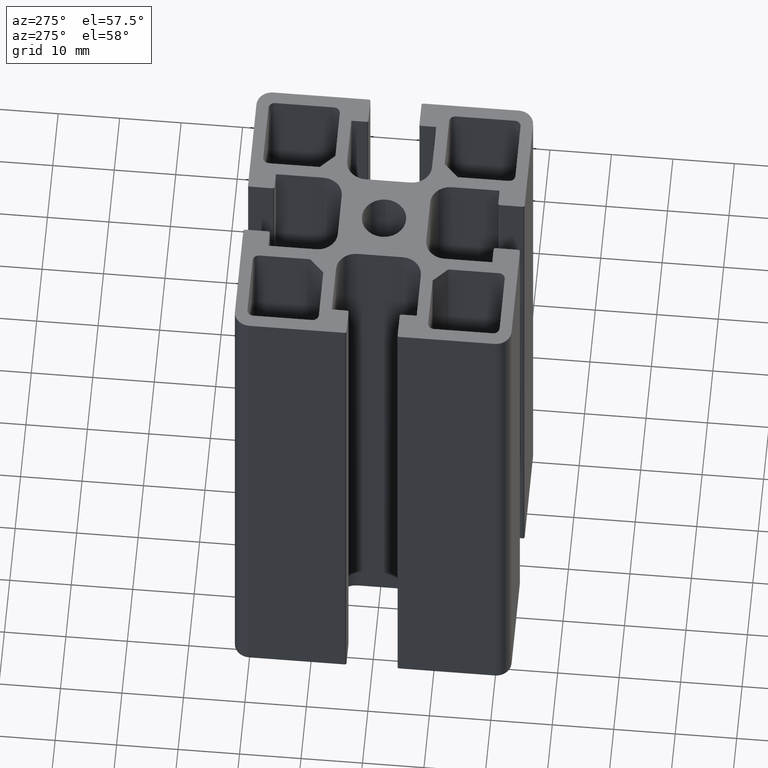
[diagram: clean part render]
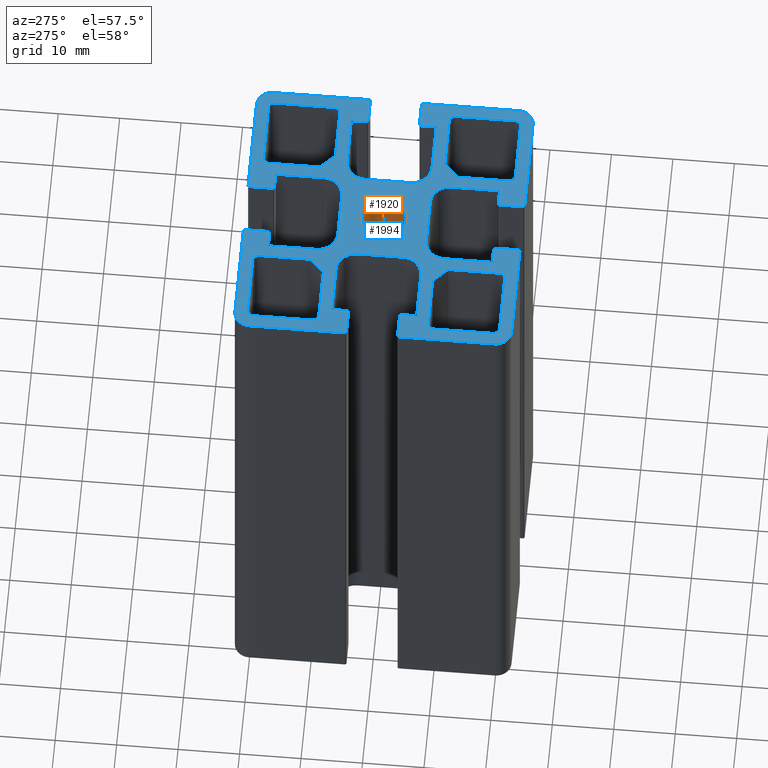
[diagram: same view with the hole feature highlighted: cylindrical wall and planar end face, labeled with their STEP entity ids]
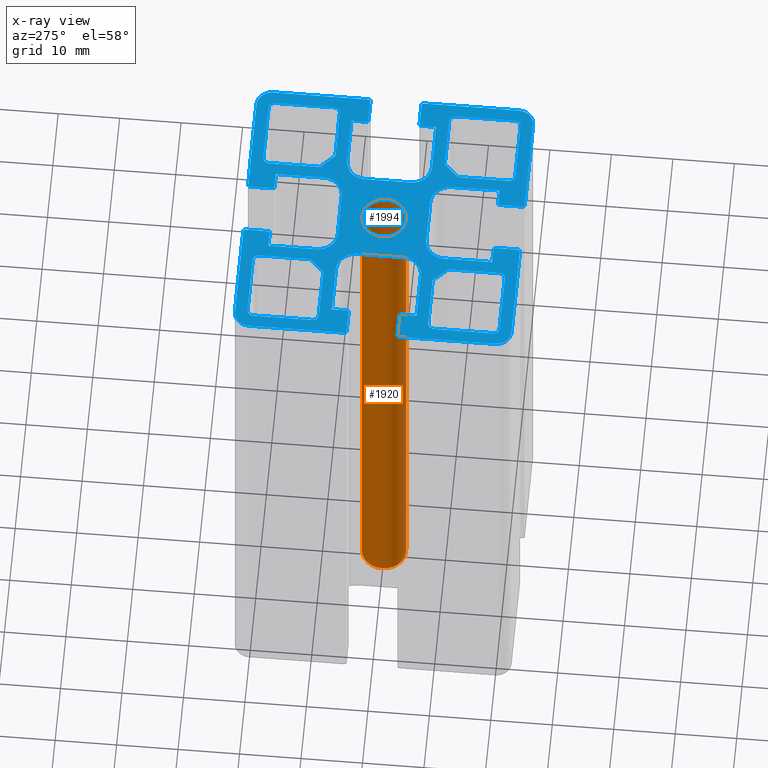
[diagram: x-ray of the same camera — body ghosted, the hole faces saturated]
A machine part, auxiliary view. The highlighted faces form one hole feature of diameter 7.2 mm: the cylindrical wall (entity #1920, orange) and its adjacent planar end face (entity #1994, blue) — they share a circular edge in the B-rep.
The next image is the same camera in x-ray (body ghosted, the hole faces saturated) — the bore reads through the body.
Wall:
#15=FACE_BOUND('',#273,.T.);
#44=CIRCLE('',#2040,3.6);
#45=CIRCLE('',#2041,3.6);
#117=CYLINDRICAL_SURFACE('',#2039,3.6);
#173=FACE_OUTER_BOUND('',#272,.T.);
#272=EDGE_LOOP('',(#1354));
#273=EDGE_LOOP('',(#1355));
#822=VERTEX_POINT('',#2896);
#823=VERTEX_POINT('',#2898);
#1040=EDGE_CURVE('',#822,#822,#44,.T.);
#1041=EDGE_CURVE('',#823,#823,#45,.T.);
#1354=ORIENTED_EDGE('',*,*,#1040,.F.);
#1355=ORIENTED_EDGE('',*,*,#1041,.F.);
#1920=ADVANCED_FACE('',(#173,#15),#117,.F.);
#2039=AXIS2_PLACEMENT_3D('',#2895,#2318,#2319);
#2040=AXIS2_PLACEMENT_3D('',#2897,#2320,#2321);
#2041=AXIS2_PLACEMENT_3D('',#2899,#2322,#2323);
#2318=DIRECTION('center_axis',(0.,0.,1.));
#2319=DIRECTION('ref_axis',(-1.,0.,0.));
#2320=DIRECTION('center_axis',(0.,0.,-1.));
#2321=DIRECTION('ref_axis',(-1.,0.,0.));
#2322=DIRECTION('center_axis',(0.,0.,1.));
#2323=DIRECTION('ref_axis',(-1.,0.,0.));
#2895=CARTESIAN_POINT('Origin',(0.,0.,0.));
#2896=CARTESIAN_POINT('',(3.6,-4.40872847693047E-16,100.));
#2897=CARTESIAN_POINT('Origin',(0.,0.,100.));
#2898=CARTESIAN_POINT('',(3.6,4.40872847693047E-16,0.));
#2899=CARTESIAN_POINT('Origin',(0.,0.,0.));
End face:
#21=FACE_BOUND('',#353,.T.);
#22=FACE_BOUND('',#354,.T.);
#23=FACE_BOUND('',#355,.T.);
#24=FACE_BOUND('',#356,.T.);
#25=FACE_BOUND('',#357,.T.);
#26=CIRCLE('',#1999,1.);
#28=CIRCLE('',#2003,1.);
#30=CIRCLE('',#2009,1.);
#32=CIRCLE('',#2013,1.);
#34=CIRCLE('',#2017,1.);
#36=CIRCLE('',#2021,1.);
#38=CIRCLE('',#2028,1.);
#40=CIRCLE('',#2032,1.);
#42=CIRCLE('',#2036,1.);
#44=CIRCLE('',#2040,3.6);
#46=CIRCLE('',#2044,3.2);
#48=CIRCLE('',#2049,0.300000000000001);
#50=CIRCLE('',#2053,0.300000000000001);
#52=CIRCLE('',#2056,0.300000000000002);
#54=CIRCLE('',#2060,0.299999999999997);
#56=CIRCLE('',#2065,3.2);
#58=CIRCLE('',#2068,3.2);
#60=CIRCLE('',#2073,0.299999999999997);
#62=CIRCLE('',#2077,0.300000000000001);
#64=CIRCLE('',#2080,0.300000000000001);
#66=CIRCLE('',#2084,0.3);
#68=CIRCLE('',#2089,3.2);
#70=CIRCLE('',#2094,3.2);
#72=CIRCLE('',#2099,0.3);
#74=CIRCLE('',#2103,0.300000000000001);
#76=CIRCLE('',#2106,0.300000000000003);
#78=CIRCLE('',#2110,0.299999999999997);
#80=CIRCLE('',#2115,3.2);
#82=CIRCLE('',#2118,3.2);
#84=CIRCLE('',#2123,0.299999999999997);
#86=CIRCLE('',#2127,0.300000000000003);
#88=CIRCLE('',#2130,0.300000000000001);
#90=CIRCLE('',#2134,0.300000000000001);
#92=CIRCLE('',#2139,3.2);
#94=CIRCLE('',#2145,1.);
#96=CIRCLE('',#2149,1.);
#98=CIRCLE('',#2153,1.);
#104=CIRCLE('',#2166,2.5);
#105=CIRCLE('',#2169,2.5);
#106=CIRCLE('',#2172,2.5);
#107=CIRCLE('',#2175,2.5);
#247=FACE_OUTER_BOUND('',#352,.T.);
#352=EDGE_LOOP('',(#1741,#1742,#1743,#1744,#1745,#1746,#1747,#1748,#1749,
#1750,#1751,#1752,#1753,#1754,#1755,#1756,#1757,#1758,#1759,#1760,#1761,
#1762,#1763,#1764,#1765,#1766,#1767,#1768,#1769,#1770,#1771,#1772,#1773,
#1774,#1775,#1776,#1777,#1778,#1779,#1780,#1781,#1782,#1783,#1784,#1785,
#1786,#1787,#1788,#1789,#1790,#1791,#1792,#1793,#1794,#1795,#1796,#1797,
#1798,#1799,#1800,#1801,#1802,#1803,#1804));
#353=EDGE_LOOP('',(#1805,#1806,#1807,#1808,#1809,#1810,#1811,#1812));
#354=EDGE_LOOP('',(#1813,#1814,#1815,#1816,#1817,#1818,#1819,#1820));
#355=EDGE_LOOP('',(#1821,#1822,#1823,#1824,#1825,#1826,#1827,#1828));
#356=EDGE_LOOP('',(#1829));
#357=EDGE_LOOP('',(#1830,#1831,#1832,#1833,#1834,#1835,#1836,#1837));
#358=LINE('',#2754,#566);
#363=LINE('',#2768,#571);
#367=LINE('',#2780,#575);
#370=LINE('',#2786,#578);
#373=LINE('',#2792,#581);
#376=LINE('',#2802,#584);
#381=LINE('',#2816,#589);
#385=LINE('',#2828,#593);
#389=LINE('',#2840,#597);
#392=LINE('',#2845,#600);
#394=LINE('',#2850,#602);
#398=LINE('',#2858,#606);
#402=LINE('',#2870,#610);
#406=LINE('',#2882,#614);
#410=LINE('',#2893,#618);
#412=LINE('',#2903,#620);
#417=LINE('',#2917,#625);
#420=LINE('',#2923,#628);
#424=LINE('',#2935,#632);
#430=LINE('',#2956,#638);
#434=LINE('',#2968,#642);
#437=LINE('',#2974,#645);
#442=LINE('',#2992,#650);
#445=LINE('',#2998,#653);
#449=LINE('',#3010,#657);
#455=LINE('',#3031,#663);
#459=LINE('',#3043,#667);
#462=LINE('',#3049,#670);
#466=LINE('',#3060,#674);
#468=LINE('',#3065,#676);
#473=LINE('',#3079,#681);
#476=LINE('',#3085,#684);
#480=LINE('',#3097,#688);
#486=LINE('',#3118,#694);
#490=LINE('',#3130,#698);
#493=LINE('',#3136,#701);
#498=LINE('',#3154,#706);
#501=LINE('',#3160,#709);
#505=LINE('',#3172,#713);
#511=LINE('',#3193,#719);
#515=LINE('',#3205,#723);
#518=LINE('',#3211,#726);
#522=LINE('',#3222,#730);
#524=LINE('',#3227,#732);
#528=LINE('',#3235,#736);
#532=LINE('',#3247,#740);
#536=LINE('',#3259,#744);
#540=LINE('',#3270,#748);
#542=LINE('',#3274,#750);
#547=LINE('',#3283,#755);
#548=LINE('',#3286,#756);
#553=LINE('',#3295,#761);
#558=LINE('',#3313,#766);
#561=LINE('',#3320,#769);
#562=LINE('',#3325,#770);
#565=LINE('',#3332,#773);
#566=VECTOR('',#2182,9.60000000000001);
#571=VECTOR('',#2195,9.6);
#575=VECTOR('',#2207,8.26654762208439);
#578=VECTOR('',#2212,3.3);
#581=VECTOR('',#2217,8.2665476220844);
#584=VECTOR('',#2228,8.26654762208439);
#589=VECTOR('',#2241,9.6);
#593=VECTOR('',#2253,9.6);
#597=VECTOR('',#2265,8.26654762208439);
#600=VECTOR('',#2270,3.3);
#602=VECTOR('',#2274,3.3);
#606=VECTOR('',#2280,8.26654762208439);
#610=VECTOR('',#2292,9.60000000000001);
#614=VECTOR('',#2304,9.6);
#618=VECTOR('',#2316,8.26654762208439);
#620=VECTOR('',#2326,7.4);
#625=VECTOR('',#2339,7.8);
#628=VECTOR('',#2344,2.45);
#632=VECTOR('',#2356,3.7);
#638=VECTOR('',#2376,3.70000000000001);
#642=VECTOR('',#2388,2.45);
#645=VECTOR('',#2393,7.8);
#650=VECTOR('',#2412,7.8);
#653=VECTOR('',#2417,2.45);
#657=VECTOR('',#2429,3.70000000000001);
#663=VECTOR('',#2449,3.7);
#667=VECTOR('',#2461,2.45);
#670=VECTOR('',#2466,7.8);
#674=VECTOR('',#2478,7.4);
#676=VECTOR('',#2482,7.4);
#681=VECTOR('',#2495,7.8);
#684=VECTOR('',#2500,2.45);
#688=VECTOR('',#2512,3.7);
#694=VECTOR('',#2532,3.70000000000001);
#698=VECTOR('',#2544,2.45);
#701=VECTOR('',#2549,7.8);
#706=VECTOR('',#2568,7.8);
#709=VECTOR('',#2573,2.45);
#713=VECTOR('',#2585,3.70000000000001);
#719=VECTOR('',#2605,3.7);
#723=VECTOR('',#2617,2.45);
#726=VECTOR('',#2622,7.8);
#730=VECTOR('',#2634,7.4);
#732=VECTOR('',#2638,3.3);
#736=VECTOR('',#2644,8.26654762208439);
#740=VECTOR('',#2656,9.6);
#744=VECTOR('',#2668,9.6);
#748=VECTOR('',#2680,8.26654762208439);
#750=VECTOR('',#2684,15.55);
#755=VECTOR('',#2691,15.55);
#756=VECTOR('',#2694,15.55);
#761=VECTOR('',#2701,15.55);
#766=VECTOR('',#2722,15.55);
#769=VECTOR('',#2731,15.55);
#770=VECTOR('',#2738,15.55);
#773=VECTOR('',#2747,15.55);
#774=VERTEX_POINT('',#2752);
#775=VERTEX_POINT('',#2753);
#778=VERTEX_POINT('',#2761);
#780=VERTEX_POINT('',#2767);
#782=VERTEX_POINT('',#2773);
#784=VERTEX_POINT('',#2779);
#786=VERTEX_POINT('',#2785);
#788=VERTEX_POINT('',#2791);
#790=VERTEX_POINT('',#2800);
#791=VERTEX_POINT('',#2801);
#794=VERTEX_POINT('',#2809);
#796=VERTEX_POINT('',#2815);
#798=VERTEX_POINT('',#2821);
#800=VERTEX_POINT('',#2827);
#802=VERTEX_POINT('',#2833);
#804=VERTEX_POINT('',#2839);
#806=VERTEX_POINT('',#2848);
#807=VERTEX_POINT('',#2849);
#810=VERTEX_POINT('',#2857);
#812=VERTEX_POINT('',#2863);
#814=VERTEX_POINT('',#2869);
#816=VERTEX_POINT('',#2875);
#818=VERTEX_POINT('',#2881);
#820=VERTEX_POINT('',#2887);
#822=VERTEX_POINT('',#2896);
#824=VERTEX_POINT('',#2901);
#825=VERTEX_POINT('',#2902);
#828=VERTEX_POINT('',#2910);
#830=VERTEX_POINT('',#2916);
#832=VERTEX_POINT('',#2922);
#834=VERTEX_POINT('',#2928);
#836=VERTEX_POINT('',#2934);
#838=VERTEX_POINT('',#2940);
#840=VERTEX_POINT('',#2946);
#841=VERTEX_POINT('',#2947);
#844=VERTEX_POINT('',#2955);
#846=VERTEX_POINT('',#2961);
#848=VERTEX_POINT('',#2967);
#850=VERTEX_POINT('',#2973);
#852=VERTEX_POINT('',#2982);
#853=VERTEX_POINT('',#2983);
#856=VERTEX_POINT('',#2991);
#858=VERTEX_POINT('',#2997);
#860=VERTEX_POINT('',#3003);
#862=VERTEX_POINT('',#3009);
#864=VERTEX_POINT('',#3015);
#866=VERTEX_POINT('',#3021);
#867=VERTEX_POINT('',#3022);
#870=VERTEX_POINT('',#3030);
#872=VERTEX_POINT('',#3036);
#874=VERTEX_POINT('',#3042);
#876=VERTEX_POINT('',#3048);
#878=VERTEX_POINT('',#3054);
#880=VERTEX_POINT('',#3063);
#881=VERTEX_POINT('',#3064);
#884=VERTEX_POINT('',#3072);
#886=VERTEX_POINT('',#3078);
#888=VERTEX_POINT('',#3084);
#890=VERTEX_POINT('',#3090);
#892=VERTEX_POINT('',#3096);
#894=VERTEX_POINT('',#3102);
#896=VERTEX_POINT('',#3108);
#897=VERTEX_POINT('',#3109);
#900=VERTEX_POINT('',#3117);
#902=VERTEX_POINT('',#3123);
#904=VERTEX_POINT('',#3129);
#906=VERTEX_POINT('',#3135);
#908=VERTEX_POINT('',#3144);
#909=VERTEX_POINT('',#3145);
#912=VERTEX_POINT('',#3153);
#914=VERTEX_POINT('',#3159);
#916=VERTEX_POINT('',#3165);
#918=VERTEX_POINT('',#3171);
#920=VERTEX_POINT('',#3177);
#922=VERTEX_POINT('',#3183);
#923=VERTEX_POINT('',#3184);
#926=VERTEX_POINT('',#3192);
#928=VERTEX_POINT('',#3198);
#930=VERTEX_POINT('',#3204);
#932=VERTEX_POINT('',#3210);
#934=VERTEX_POINT('',#3216);
#936=VERTEX_POINT('',#3225);
#937=VERTEX_POINT('',#3226);
#940=VERTEX_POINT('',#3234);
#942=VERTEX_POINT('',#3240);
#944=VERTEX_POINT('',#3246);
#946=VERTEX_POINT('',#3252);
#948=VERTEX_POINT('',#3258);
#950=VERTEX_POINT('',#3264);
#952=VERTEX_POINT('',#3273);
#955=VERTEX_POINT('',#3281);
#956=VERTEX_POINT('',#3285);
#959=VERTEX_POINT('',#3293);
#964=VERTEX_POINT('',#3312);
#965=VERTEX_POINT('',#3316);
#966=VERTEX_POINT('',#3324);
#967=VERTEX_POINT('',#3328);
#968=EDGE_CURVE('',#774,#775,#358,.T.);
#972=EDGE_CURVE('',#775,#778,#26,.T.);
#975=EDGE_CURVE('',#778,#780,#363,.T.);
#978=EDGE_CURVE('',#780,#782,#28,.T.);
#981=EDGE_CURVE('',#782,#784,#367,.T.);
#984=EDGE_CURVE('',#784,#786,#370,.T.);
#987=EDGE_CURVE('',#786,#788,#373,.T.);
#990=EDGE_CURVE('',#788,#774,#30,.T.);
#992=EDGE_CURVE('',#790,#791,#376,.T.);
#996=EDGE_CURVE('',#791,#794,#32,.T.);
#999=EDGE_CURVE('',#794,#796,#381,.T.);
#1002=EDGE_CURVE('',#796,#798,#34,.T.);
#1005=EDGE_CURVE('',#798,#800,#385,.T.);
#1008=EDGE_CURVE('',#800,#802,#36,.T.);
#1011=EDGE_CURVE('',#802,#804,#389,.T.);
#1014=EDGE_CURVE('',#804,#790,#392,.T.);
#1016=EDGE_CURVE('',#806,#807,#394,.T.);
#1020=EDGE_CURVE('',#810,#806,#398,.T.);
#1023=EDGE_CURVE('',#812,#810,#38,.T.);
#1026=EDGE_CURVE('',#814,#812,#402,.T.);
#1029=EDGE_CURVE('',#816,#814,#40,.T.);
#1032=EDGE_CURVE('',#818,#816,#406,.T.);
#1035=EDGE_CURVE('',#820,#818,#42,.T.);
#1038=EDGE_CURVE('',#807,#820,#410,.T.);
#1040=EDGE_CURVE('',#822,#822,#44,.T.);
#1042=EDGE_CURVE('',#824,#825,#412,.T.);
#1046=EDGE_CURVE('',#828,#824,#46,.T.);
#1049=EDGE_CURVE('',#830,#828,#417,.T.);
#1052=EDGE_CURVE('',#832,#830,#420,.T.);
#1055=EDGE_CURVE('',#834,#832,#48,.T.);
#1058=EDGE_CURVE('',#836,#834,#424,.T.);
#1061=EDGE_CURVE('',#838,#836,#50,.T.);
#1064=EDGE_CURVE('',#840,#841,#52,.T.);
#1068=EDGE_CURVE('',#844,#840,#430,.T.);
#1071=EDGE_CURVE('',#846,#844,#54,.T.);
#1074=EDGE_CURVE('',#848,#846,#434,.T.);
#1077=EDGE_CURVE('',#850,#848,#437,.T.);
#1080=EDGE_CURVE('',#825,#850,#56,.T.);
#1082=EDGE_CURVE('',#852,#853,#58,.T.);
#1086=EDGE_CURVE('',#853,#856,#442,.T.);
#1089=EDGE_CURVE('',#856,#858,#445,.T.);
#1092=EDGE_CURVE('',#858,#860,#60,.T.);
#1095=EDGE_CURVE('',#860,#862,#449,.T.);
#1098=EDGE_CURVE('',#862,#864,#62,.T.);
#1101=EDGE_CURVE('',#866,#867,#64,.T.);
#1105=EDGE_CURVE('',#867,#870,#455,.T.);
#1108=EDGE_CURVE('',#870,#872,#66,.T.);
#1111=EDGE_CURVE('',#872,#874,#459,.T.);
#1114=EDGE_CURVE('',#874,#876,#462,.T.);
#1117=EDGE_CURVE('',#876,#878,#68,.T.);
#1120=EDGE_CURVE('',#878,#852,#466,.T.);
#1122=EDGE_CURVE('',#880,#881,#468,.T.);
#1126=EDGE_CURVE('',#884,#880,#70,.T.);
#1129=EDGE_CURVE('',#886,#884,#473,.T.);
#1132=EDGE_CURVE('',#888,#886,#476,.T.);
#1135=EDGE_CURVE('',#890,#888,#72,.T.);
#1138=EDGE_CURVE('',#892,#890,#480,.T.);
#1141=EDGE_CURVE('',#894,#892,#74,.T.);
#1144=EDGE_CURVE('',#896,#897,#76,.T.);
#1148=EDGE_CURVE('',#900,#896,#486,.T.);
#1151=EDGE_CURVE('',#902,#900,#78,.T.);
#1154=EDGE_CURVE('',#904,#902,#490,.T.);
#1157=EDGE_CURVE('',#906,#904,#493,.T.);
#1160=EDGE_CURVE('',#881,#906,#80,.T.);
#1162=EDGE_CURVE('',#908,#909,#82,.T.);
#1166=EDGE_CURVE('',#909,#912,#498,.T.);
#1169=EDGE_CURVE('',#912,#914,#501,.T.);
#1172=EDGE_CURVE('',#914,#916,#84,.T.);
#1175=EDGE_CURVE('',#916,#918,#505,.T.);
#1178=EDGE_CURVE('',#918,#920,#86,.T.);
#1181=EDGE_CURVE('',#922,#923,#88,.T.);
#1185=EDGE_CURVE('',#923,#926,#511,.T.);
#1188=EDGE_CURVE('',#926,#928,#90,.T.);
#1191=EDGE_CURVE('',#928,#930,#515,.T.);
#1194=EDGE_CURVE('',#930,#932,#518,.T.);
#1197=EDGE_CURVE('',#932,#934,#92,.T.);
#1200=EDGE_CURVE('',#934,#908,#522,.T.);
#1202=EDGE_CURVE('',#936,#937,#524,.T.);
#1206=EDGE_CURVE('',#940,#936,#528,.T.);
#1209=EDGE_CURVE('',#942,#940,#94,.T.);
#1212=EDGE_CURVE('',#944,#942,#532,.T.);
#1215=EDGE_CURVE('',#946,#944,#96,.T.);
#1218=EDGE_CURVE('',#948,#946,#536,.T.);
#1221=EDGE_CURVE('',#950,#948,#98,.T.);
#1224=EDGE_CURVE('',#937,#950,#540,.T.);
#1226=EDGE_CURVE('',#838,#952,#542,.T.);
#1231=EDGE_CURVE('',#955,#864,#547,.T.);
#1232=EDGE_CURVE('',#894,#956,#548,.T.);
#1237=EDGE_CURVE('',#959,#920,#553,.T.);
#1246=EDGE_CURVE('',#952,#955,#104,.T.);
#1247=EDGE_CURVE('',#866,#964,#558,.T.);
#1249=EDGE_CURVE('',#964,#965,#105,.T.);
#1251=EDGE_CURVE('',#965,#897,#561,.T.);
#1252=EDGE_CURVE('',#956,#959,#106,.T.);
#1253=EDGE_CURVE('',#922,#966,#562,.T.);
#1255=EDGE_CURVE('',#966,#967,#107,.T.);
#1257=EDGE_CURVE('',#967,#841,#565,.T.);
#1741=ORIENTED_EDGE('',*,*,#1064,.T.);
#1742=ORIENTED_EDGE('',*,*,#1257,.F.);
#1743=ORIENTED_EDGE('',*,*,#1255,.F.);
#1744=ORIENTED_EDGE('',*,*,#1253,.F.);
#1745=ORIENTED_EDGE('',*,*,#1181,.T.);
#1746=ORIENTED_EDGE('',*,*,#1185,.T.);
#1747=ORIENTED_EDGE('',*,*,#1188,.T.);
#1748=ORIENTED_EDGE('',*,*,#1191,.T.);
#1749=ORIENTED_EDGE('',*,*,#1194,.T.);
#1750=ORIENTED_EDGE('',*,*,#1197,.T.);
#1751=ORIENTED_EDGE('',*,*,#1200,.T.);
#1752=ORIENTED_EDGE('',*,*,#1162,.T.);
#1753=ORIENTED_EDGE('',*,*,#1166,.T.);
#1754=ORIENTED_EDGE('',*,*,#1169,.T.);
#1755=ORIENTED_EDGE('',*,*,#1172,.T.);
#1756=ORIENTED_EDGE('',*,*,#1175,.T.);
#1757=ORIENTED_EDGE('',*,*,#1178,.T.);
#1758=ORIENTED_EDGE('',*,*,#1237,.F.);
#1759=ORIENTED_EDGE('',*,*,#1252,.F.);
#1760=ORIENTED_EDGE('',*,*,#1232,.F.);
#1761=ORIENTED_EDGE('',*,*,#1141,.T.);
#1762=ORIENTED_EDGE('',*,*,#1138,.T.);
#1763=ORIENTED_EDGE('',*,*,#1135,.T.);
#1764=ORIENTED_EDGE('',*,*,#1132,.T.);
#1765=ORIENTED_EDGE('',*,*,#1129,.T.);
#1766=ORIENTED_EDGE('',*,*,#1126,.T.);
#1767=ORIENTED_EDGE('',*,*,#1122,.T.);
#1768=ORIENTED_EDGE('',*,*,#1160,.T.);
#1769=ORIENTED_EDGE('',*,*,#1157,.T.);
#1770=ORIENTED_EDGE('',*,*,#1154,.T.);
#1771=ORIENTED_EDGE('',*,*,#1151,.T.);
#1772=ORIENTED_EDGE('',*,*,#1148,.T.);
#1773=ORIENTED_EDGE('',*,*,#1144,.T.);
#1774=ORIENTED_EDGE('',*,*,#1251,.F.);
#1775=ORIENTED_EDGE('',*,*,#1249,.F.);
#1776=ORIENTED_EDGE('',*,*,#1247,.F.);
#1777=ORIENTED_EDGE('',*,*,#1101,.T.);
#1778=ORIENTED_EDGE('',*,*,#1105,.T.);
#1779=ORIENTED_EDGE('',*,*,#1108,.T.);
#1780=ORIENTED_EDGE('',*,*,#1111,.T.);
#1781=ORIENTED_EDGE('',*,*,#1114,.T.);
#1782=ORIENTED_EDGE('',*,*,#1117,.T.);
#1783=ORIENTED_EDGE('',*,*,#1120,.T.);
#1784=ORIENTED_EDGE('',*,*,#1082,.T.);
#1785=ORIENTED_EDGE('',*,*,#1086,.T.);
#1786=ORIENTED_EDGE('',*,*,#1089,.T.);
#1787=ORIENTED_EDGE('',*,*,#1092,.T.);
#1788=ORIENTED_EDGE('',*,*,#1095,.T.);
#1789=ORIENTED_EDGE('',*,*,#1098,.T.);
#1790=ORIENTED_EDGE('',*,*,#1231,.F.);
#1791=ORIENTED_EDGE('',*,*,#1246,.F.);
#1792=ORIENTED_EDGE('',*,*,#1226,.F.);
#1793=ORIENTED_EDGE('',*,*,#1061,.T.);
#1794=ORIENTED_EDGE('',*,*,#1058,.T.);
#1795=ORIENTED_EDGE('',*,*,#1055,.T.);
#1796=ORIENTED_EDGE('',*,*,#1052,.T.);
#1797=ORIENTED_EDGE('',*,*,#1049,.T.);
#1798=ORIENTED_EDGE('',*,*,#1046,.T.);
#1799=ORIENTED_EDGE('',*,*,#1042,.T.);
#1800=ORIENTED_EDGE('',*,*,#1080,.T.);
#1801=ORIENTED_EDGE('',*,*,#1077,.T.);
#1802=ORIENTED_EDGE('',*,*,#1074,.T.);
#1803=ORIENTED_EDGE('',*,*,#1071,.T.);
#1804=ORIENTED_EDGE('',*,*,#1068,.T.);
#1805=ORIENTED_EDGE('',*,*,#968,.T.);
#1806=ORIENTED_EDGE('',*,*,#972,.T.);
#1807=ORIENTED_EDGE('',*,*,#975,.T.);
#1808=ORIENTED_EDGE('',*,*,#978,.T.);
#1809=ORIENTED_EDGE('',*,*,#981,.T.);
#1810=ORIENTED_EDGE('',*,*,#984,.T.);
#1811=ORIENTED_EDGE('',*,*,#987,.T.);
#1812=ORIENTED_EDGE('',*,*,#990,.T.);
#1813=ORIENTED_EDGE('',*,*,#992,.T.);
#1814=ORIENTED_EDGE('',*,*,#996,.T.);
#1815=ORIENTED_EDGE('',*,*,#999,.T.);
#1816=ORIENTED_EDGE('',*,*,#1002,.T.);
#1817=ORIENTED_EDGE('',*,*,#1005,.T.);
#1818=ORIENTED_EDGE('',*,*,#1008,.T.);
#1819=ORIENTED_EDGE('',*,*,#1011,.T.);
#1820=ORIENTED_EDGE('',*,*,#1014,.T.);
#1821=ORIENTED_EDGE('',*,*,#1016,.T.);
#1822=ORIENTED_EDGE('',*,*,#1038,.T.);
#1823=ORIENTED_EDGE('',*,*,#1035,.T.);
#1824=ORIENTED_EDGE('',*,*,#1032,.T.);
#1825=ORIENTED_EDGE('',*,*,#1029,.T.);
#1826=ORIENTED_EDGE('',*,*,#1026,.T.);
#1827=ORIENTED_EDGE('',*,*,#1023,.T.);
#1828=ORIENTED_EDGE('',*,*,#1020,.T.);
#1829=ORIENTED_EDGE('',*,*,#1040,.T.);
#1830=ORIENTED_EDGE('',*,*,#1202,.T.);
#1831=ORIENTED_EDGE('',*,*,#1224,.T.);
#1832=ORIENTED_EDGE('',*,*,#1221,.T.);
#1833=ORIENTED_EDGE('',*,*,#1218,.T.);
#1834=ORIENTED_EDGE('',*,*,#1215,.T.);
#1835=ORIENTED_EDGE('',*,*,#1212,.T.);
#1836=ORIENTED_EDGE('',*,*,#1209,.T.);
#1837=ORIENTED_EDGE('',*,*,#1206,.T.);
#1895=PLANE('',#2177);
#1994=ADVANCED_FACE('',(#247,#21,#22,#23,#24,#25),#1895,.T.);
#1999=AXIS2_PLACEMENT_3D('',#2762,#2188,#2189);
#2003=AXIS2_PLACEMENT_3D('',#2774,#2200,#2201);
#2009=AXIS2_PLACEMENT_3D('',#2797,#2222,#2223);
#2013=AXIS2_PLACEMENT_3D('',#2810,#2234,#2235);
#2017=AXIS2_PLACEMENT_3D('',#2822,#2246,#2247);
#2021=AXIS2_PLACEMENT_3D('',#2834,#2258,#2259);
#2028=AXIS2_PLACEMENT_3D('',#2864,#2285,#2286);
#2032=AXIS2_PLACEMENT_3D('',#2876,#2297,#2298);
#2036=AXIS2_PLACEMENT_3D('',#2888,#2309,#2310);
#2040=AXIS2_PLACEMENT_3D('',#2897,#2320,#2321);
#2044=AXIS2_PLACEMENT_3D('',#2911,#2332,#2333);
#2049=AXIS2_PLACEMENT_3D('',#2929,#2349,#2350);
#2053=AXIS2_PLACEMENT_3D('',#2941,#2361,#2362);
#2056=AXIS2_PLACEMENT_3D('',#2948,#2368,#2369);
#2060=AXIS2_PLACEMENT_3D('',#2962,#2381,#2382);
#2065=AXIS2_PLACEMENT_3D('',#2979,#2398,#2399);
#2068=AXIS2_PLACEMENT_3D('',#2984,#2404,#2405);
#2073=AXIS2_PLACEMENT_3D('',#3004,#2422,#2423);
#2077=AXIS2_PLACEMENT_3D('',#3016,#2434,#2435);
#2080=AXIS2_PLACEMENT_3D('',#3023,#2441,#2442);
#2084=AXIS2_PLACEMENT_3D('',#3037,#2454,#2455);
#2089=AXIS2_PLACEMENT_3D('',#3055,#2471,#2472);
#2094=AXIS2_PLACEMENT_3D('',#3073,#2488,#2489);
#2099=AXIS2_PLACEMENT_3D('',#3091,#2505,#2506);
#2103=AXIS2_PLACEMENT_3D('',#3103,#2517,#2518);
#2106=AXIS2_PLACEMENT_3D('',#3110,#2524,#2525);
#2110=AXIS2_PLACEMENT_3D('',#3124,#2537,#2538);
#2115=AXIS2_PLACEMENT_3D('',#3141,#2554,#2555);
#2118=AXIS2_PLACEMENT_3D('',#3146,#2560,#2561);
#2123=AXIS2_PLACEMENT_3D('',#3166,#2578,#2579);
#2127=AXIS2_PLACEMENT_3D('',#3178,#2590,#2591);
#2130=AXIS2_PLACEMENT_3D('',#3185,#2597,#2598);
#2134=AXIS2_PLACEMENT_3D('',#3199,#2610,#2611);
#2139=AXIS2_PLACEMENT_3D('',#3217,#2627,#2628);
#2145=AXIS2_PLACEMENT_3D('',#3241,#2649,#2650);
#2149=AXIS2_PLACEMENT_3D('',#3253,#2661,#2662);
#2153=AXIS2_PLACEMENT_3D('',#3265,#2673,#2674);
#2166=AXIS2_PLACEMENT_3D('',#3310,#2718,#2719);
#2169=AXIS2_PLACEMENT_3D('',#3317,#2726,#2727);
#2172=AXIS2_PLACEMENT_3D('',#3322,#2734,#2735);
#2175=AXIS2_PLACEMENT_3D('',#3329,#2742,#2743);
#2177=AXIS2_PLACEMENT_3D('',#3333,#2748,#2749);
#2182=DIRECTION('',(1.,-9.25185853854297E-16,0.));
#2188=DIRECTION('center_axis',(0.,0.,-1.));
#2189=DIRECTION('ref_axis',(1.,0.,0.));
#2195=DIRECTION('',(-9.25185853854297E-16,-1.,0.));
#2200=DIRECTION('center_axis',(0.,0.,-1.));
#2201=DIRECTION('ref_axis',(0.,-1.,0.));
#2207=DIRECTION('',(-1.,4.02909319118596E-16,0.));
#2212=DIRECTION('',(-0.707106781186547,0.707106781186548,0.));
#2217=DIRECTION('',(0.,1.,0.));
#2222=DIRECTION('center_axis',(0.,0.,-1.));
#2223=DIRECTION('ref_axis',(0.,1.,0.));
#2228=DIRECTION('',(1.,4.02909319118596E-16,0.));
#2234=DIRECTION('center_axis',(0.,0.,-1.));
#2235=DIRECTION('ref_axis',(1.,0.,0.));
#2241=DIRECTION('',(4.62592926927148E-16,-1.,0.));
#2246=DIRECTION('center_axis',(0.,0.,-1.));
#2247=DIRECTION('ref_axis',(0.,-1.,0.));
#2253=DIRECTION('',(-1.,0.,0.));
#2258=DIRECTION('center_axis',(0.,0.,-1.));
#2259=DIRECTION('ref_axis',(-1.,0.,0.));
#2265=DIRECTION('',(0.,1.,0.));
#2270=DIRECTION('',(0.707106781186547,0.707106781186548,0.));
#2274=DIRECTION('',(-0.707106781186548,-0.707106781186547,0.));
#2280=DIRECTION('',(-2.6860621274573E-16,-1.,0.));
#2285=DIRECTION('center_axis',(0.,0.,-1.));
#2286=DIRECTION('ref_axis',(1.,0.,0.));
#2292=DIRECTION('',(1.,0.,0.));
#2297=DIRECTION('center_axis',(0.,0.,-1.));
#2298=DIRECTION('ref_axis',(0.,1.,0.));
#2304=DIRECTION('',(-9.25185853854297E-16,1.,0.));
#2309=DIRECTION('center_axis',(0.,0.,-1.));
#2310=DIRECTION('ref_axis',(-1.,0.,0.));
#2316=DIRECTION('',(-1.,-2.68606212745731E-16,0.));
#2320=DIRECTION('center_axis',(0.,0.,-1.));
#2321=DIRECTION('ref_axis',(-1.,0.,0.));
#2326=DIRECTION('',(1.50030138462859E-16,1.,0.));
#2332=DIRECTION('center_axis',(0.,0.,-1.));
#2333=DIRECTION('ref_axis',(-1.,1.73472347597681E-16,0.));
#2339=DIRECTION('',(-1.,1.42336285208353E-16,0.));
#2344=DIRECTION('',(0.,-1.,0.));
#2349=DIRECTION('center_axis',(0.,0.,1.));
#2350=DIRECTION('ref_axis',(0.,-1.,0.));
#2356=DIRECTION('',(-1.,4.50090415388577E-16,0.));
#2361=DIRECTION('center_axis',(0.,0.,1.));
#2362=DIRECTION('ref_axis',(-1.,-7.40148683083442E-15,0.));
#2368=DIRECTION('center_axis',(0.,0.,1.));
#2369=DIRECTION('ref_axis',(1.48029736616686E-14,1.,0.));
#2376=DIRECTION('',(1.,-9.00180830777152E-16,0.));
#2381=DIRECTION('center_axis',(0.,0.,1.));
#2382=DIRECTION('ref_axis',(1.,0.,0.));
#2388=DIRECTION('',(-1.81260901979617E-15,-1.,0.));
#2393=DIRECTION('',(1.,-1.42336285208353E-16,0.));
#2398=DIRECTION('center_axis',(0.,0.,-1.));
#2399=DIRECTION('ref_axis',(0.,1.,0.));
#2404=DIRECTION('center_axis',(0.,0.,-1.));
#2405=DIRECTION('ref_axis',(1.,0.,0.));
#2412=DIRECTION('',(0.,-1.,0.));
#2417=DIRECTION('',(-1.,1.81260901979617E-15,0.));
#2422=DIRECTION('center_axis',(0.,0.,1.));
#2423=DIRECTION('ref_axis',(3.70074341541721E-15,-1.,0.));
#2429=DIRECTION('',(-1.05021096924001E-15,-1.,0.));
#2434=DIRECTION('center_axis',(0.,0.,1.));
#2435=DIRECTION('ref_axis',(1.,0.,0.));
#2441=DIRECTION('center_axis',(0.,0.,1.));
#2442=DIRECTION('ref_axis',(0.,1.,0.));
#2449=DIRECTION('',(3.00060276925718E-16,1.,0.));
#2454=DIRECTION('center_axis',(0.,0.,1.));
#2455=DIRECTION('ref_axis',(-1.,0.,0.));
#2461=DIRECTION('',(-1.,0.,0.));
#2466=DIRECTION('',(1.42336285208353E-16,1.,0.));
#2471=DIRECTION('center_axis',(0.,0.,-1.));
#2472=DIRECTION('ref_axis',(0.,1.,0.));
#2478=DIRECTION('',(1.,-1.50030138462859E-16,0.));
#2482=DIRECTION('',(-1.50030138462859E-16,-1.,0.));
#2488=DIRECTION('center_axis',(0.,0.,-1.));
#2489=DIRECTION('ref_axis',(1.,0.,0.));
#2495=DIRECTION('',(1.,-2.84672570416707E-16,0.));
#2500=DIRECTION('',(0.,1.,0.));
#2505=DIRECTION('center_axis',(0.,0.,1.));
#2506=DIRECTION('ref_axis',(0.,1.,0.));
#2512=DIRECTION('',(1.,-3.00060276925718E-16,0.));
#2517=DIRECTION('center_axis',(0.,0.,1.));
#2518=DIRECTION('ref_axis',(1.,0.,0.));
#2524=DIRECTION('center_axis',(0.,0.,1.));
#2525=DIRECTION('ref_axis',(-1.48029736616686E-14,-1.,0.));
#2532=DIRECTION('',(-1.,1.20024110770287E-15,0.));
#2537=DIRECTION('center_axis',(0.,0.,1.));
#2538=DIRECTION('ref_axis',(-1.,-3.70074341541721E-15,0.));
#2544=DIRECTION('',(1.81260901979617E-15,1.,0.));
#2549=DIRECTION('',(-1.,2.84672570416707E-16,0.));
#2554=DIRECTION('center_axis',(0.,0.,-1.));
#2555=DIRECTION('ref_axis',(0.,-1.,0.));
#2560=DIRECTION('center_axis',(0.,0.,-1.));
#2561=DIRECTION('ref_axis',(-1.,0.,0.));
#2568=DIRECTION('',(4.2700885562506E-16,1.,0.));
#2573=DIRECTION('',(1.,-1.81260901979617E-15,0.));
#2578=DIRECTION('center_axis',(0.,0.,1.));
#2579=DIRECTION('ref_axis',(0.,1.,0.));
#2585=DIRECTION('',(7.50150692314293E-16,1.,0.));
#2590=DIRECTION('center_axis',(0.,0.,1.));
#2591=DIRECTION('ref_axis',(-1.,1.48029736616686E-14,0.));
#2597=DIRECTION('center_axis',(0.,0.,1.));
#2598=DIRECTION('ref_axis',(0.,-1.,0.));
#2605=DIRECTION('',(0.,-1.,0.));
#2610=DIRECTION('center_axis',(0.,0.,1.));
#2611=DIRECTION('ref_axis',(1.,0.,0.));
#2617=DIRECTION('',(1.,0.,0.));
#2622=DIRECTION('',(-2.84672570416707E-16,-1.,0.));
#2627=DIRECTION('center_axis',(0.,0.,-1.));
#2628=DIRECTION('ref_axis',(-1.73472347597681E-16,-1.,0.));
#2634=DIRECTION('',(-1.,3.00060276925718E-16,0.));
#2638=DIRECTION('',(0.707106781186547,-0.707106781186548,0.));
#2644=DIRECTION('',(1.,-5.37212425491461E-16,0.));
#2649=DIRECTION('center_axis',(0.,0.,-1.));
#2650=DIRECTION('ref_axis',(0.,-1.,0.));
#2656=DIRECTION('',(4.62592926927149E-16,1.,0.));
#2661=DIRECTION('center_axis',(0.,0.,-1.));
#2662=DIRECTION('ref_axis',(1.,0.,0.));
#2668=DIRECTION('',(-1.,4.62592926927148E-16,0.));
#2673=DIRECTION('center_axis',(0.,0.,-1.));
#2674=DIRECTION('ref_axis',(0.,1.,0.));
#2680=DIRECTION('',(0.,-1.,0.));
#2684=DIRECTION('',(1.11022302462516E-16,-1.,0.));
#2691=DIRECTION('',(-1.,0.,0.));
#2694=DIRECTION('',(2.22044604925031E-16,1.,0.));
#2701=DIRECTION('',(1.,1.11022302462516E-16,0.));
#2718=DIRECTION('center_axis',(0.,0.,-1.));
#2719=DIRECTION('ref_axis',(-2.66453525910038E-15,-1.,0.));
#2722=DIRECTION('',(-1.,0.,0.));
#2726=DIRECTION('center_axis',(0.,0.,-1.));
#2727=DIRECTION('ref_axis',(-1.,0.,0.));
#2731=DIRECTION('',(2.22044604925031E-16,1.,0.));
#2734=DIRECTION('center_axis',(0.,0.,-1.));
#2735=DIRECTION('ref_axis',(-3.55271367880049E-15,1.,0.));
#2738=DIRECTION('',(1.,1.11022302462516E-16,0.));
#2742=DIRECTION('center_axis',(0.,0.,-1.));
#2743=DIRECTION('ref_axis',(1.,-3.55271367880051E-15,0.));
#2747=DIRECTION('',(1.11022302462516E-16,-1.,0.));
#2748=DIRECTION('center_axis',(0.,0.,1.));
#2749=DIRECTION('ref_axis',(1.,0.,0.));
#2752=CARTESIAN_POINT('',(9.9,20.5,100.));
#2753=CARTESIAN_POINT('',(19.5,20.5,100.));
#2754=CARTESIAN_POINT('',(9.75000000000001,20.5,100.));
#2761=CARTESIAN_POINT('',(20.5,19.5,100.));
#2762=CARTESIAN_POINT('Origin',(19.5,19.5,100.));
#2767=CARTESIAN_POINT('',(20.5,9.89999999999999,100.));
#2768=CARTESIAN_POINT('',(20.5,4.94999999999999,100.));
#2773=CARTESIAN_POINT('',(19.5,8.9,100.));
#2774=CARTESIAN_POINT('Origin',(19.5,9.9,100.));
#2779=CARTESIAN_POINT('',(11.2334523779156,8.9,100.));
#2780=CARTESIAN_POINT('',(5.6167261889578,8.9,100.));
#2785=CARTESIAN_POINT('',(8.9,11.2334523779156,100.));
#2786=CARTESIAN_POINT('',(9.48336309447891,10.6500892834367,100.));
#2791=CARTESIAN_POINT('',(8.9,19.5,100.));
#2792=CARTESIAN_POINT('',(8.9,9.75,100.));
#2797=CARTESIAN_POINT('Origin',(9.9,19.5,100.));
#2800=CARTESIAN_POINT('',(11.2334523779156,-8.9,100.));
#2801=CARTESIAN_POINT('',(19.5,-8.9,100.));
#2802=CARTESIAN_POINT('',(9.75,-8.9,100.));
#2809=CARTESIAN_POINT('',(20.5,-9.9,100.));
#2810=CARTESIAN_POINT('Origin',(19.5,-9.9,100.));
#2815=CARTESIAN_POINT('',(20.5,-19.5,100.));
#2816=CARTESIAN_POINT('',(20.5,-9.74999999999999,100.));
#2821=CARTESIAN_POINT('',(19.5,-20.5,100.));
#2822=CARTESIAN_POINT('Origin',(19.5,-19.5,100.));
#2827=CARTESIAN_POINT('',(9.9,-20.5,100.));
#2828=CARTESIAN_POINT('',(4.95,-20.5,100.));
#2833=CARTESIAN_POINT('',(8.9,-19.5,100.));
#2834=CARTESIAN_POINT('Origin',(9.9,-19.5,100.));
#2839=CARTESIAN_POINT('',(8.9,-11.2334523779156,100.));
#2840=CARTESIAN_POINT('',(8.9,-5.6167261889578,100.));
#2845=CARTESIAN_POINT('',(10.6500892834367,-9.48336309447891,100.));
#2848=CARTESIAN_POINT('',(-8.9,11.2334523779156,100.));
#2849=CARTESIAN_POINT('',(-11.2334523779156,8.9,100.));
#2850=CARTESIAN_POINT('',(-10.6500892834367,9.48336309447891,100.));
#2857=CARTESIAN_POINT('',(-8.9,19.5,100.));
#2858=CARTESIAN_POINT('',(-8.9,5.61672618895781,100.));
#2863=CARTESIAN_POINT('',(-9.9,20.5,100.));
#2864=CARTESIAN_POINT('Origin',(-9.9,19.5,100.));
#2869=CARTESIAN_POINT('',(-19.5,20.5,100.));
#2870=CARTESIAN_POINT('',(-4.95,20.5,100.));
#2875=CARTESIAN_POINT('',(-20.5,19.5,100.));
#2876=CARTESIAN_POINT('Origin',(-19.5,19.5,100.));
#2881=CARTESIAN_POINT('',(-20.5,9.9,100.));
#2882=CARTESIAN_POINT('',(-20.5,9.74999999999999,100.));
#2887=CARTESIAN_POINT('',(-19.5,8.9,100.));
#2888=CARTESIAN_POINT('Origin',(-19.5,9.9,100.));
#2893=CARTESIAN_POINT('',(-9.75,8.90000000000001,100.));
#2896=CARTESIAN_POINT('',(3.6,-4.40872847693047E-16,100.));
#2897=CARTESIAN_POINT('Origin',(0.,0.,100.));
#2901=CARTESIAN_POINT('',(7.19999999999999,-3.7,100.));
#2902=CARTESIAN_POINT('',(7.2,3.7,100.));
#2903=CARTESIAN_POINT('',(7.2,1.85,100.));
#2910=CARTESIAN_POINT('',(10.4,-6.9,100.));
#2911=CARTESIAN_POINT('Origin',(10.4,-3.7,100.));
#2916=CARTESIAN_POINT('',(18.2,-6.9,100.));
#2917=CARTESIAN_POINT('',(5.2,-6.9,100.));
#2922=CARTESIAN_POINT('',(18.2,-4.45,100.));
#2923=CARTESIAN_POINT('',(18.2,-3.45,100.));
#2928=CARTESIAN_POINT('',(18.5,-4.15,100.));
#2929=CARTESIAN_POINT('Origin',(18.5,-4.45,100.));
#2934=CARTESIAN_POINT('',(22.2,-4.15,100.));
#2935=CARTESIAN_POINT('',(9.24999999999999,-4.15,100.));
#2940=CARTESIAN_POINT('',(22.5,-4.45,100.));
#2941=CARTESIAN_POINT('Origin',(22.2,-4.45,100.));
#2946=CARTESIAN_POINT('',(22.2,4.15,100.));
#2947=CARTESIAN_POINT('',(22.5,4.45,100.));
#2948=CARTESIAN_POINT('Origin',(22.2,4.45,100.));
#2955=CARTESIAN_POINT('',(18.5,4.15,100.));
#2956=CARTESIAN_POINT('',(11.1,4.15000000000001,100.));
#2961=CARTESIAN_POINT('',(18.2,4.45,100.));
#2962=CARTESIAN_POINT('Origin',(18.5,4.45,100.));
#2967=CARTESIAN_POINT('',(18.2,6.9,100.));
#2968=CARTESIAN_POINT('',(18.2,2.22499999999998,100.));
#2973=CARTESIAN_POINT('',(10.4,6.9,100.));
#2974=CARTESIAN_POINT('',(9.09999999999999,6.9,100.));
#2979=CARTESIAN_POINT('Origin',(10.4,3.7,100.));
#2982=CARTESIAN_POINT('',(3.7,-7.2,100.));
#2983=CARTESIAN_POINT('',(6.9,-10.4,100.));
#2984=CARTESIAN_POINT('Origin',(3.7,-10.4,100.));
#2991=CARTESIAN_POINT('',(6.9,-18.2,100.));
#2992=CARTESIAN_POINT('',(6.9,-9.1,100.));
#2997=CARTESIAN_POINT('',(4.45,-18.2,100.));
#2998=CARTESIAN_POINT('',(2.22499999999998,-18.2,100.));
#3003=CARTESIAN_POINT('',(4.15,-18.5,100.));
#3004=CARTESIAN_POINT('Origin',(4.45,-18.5,100.));
#3009=CARTESIAN_POINT('',(4.15,-22.2,100.));
#3010=CARTESIAN_POINT('',(4.15000000000001,-11.1,100.));
#3015=CARTESIAN_POINT('',(4.45,-22.5,100.));
#3016=CARTESIAN_POINT('Origin',(4.45,-22.2,100.));
#3021=CARTESIAN_POINT('',(-4.45,-22.5,100.));
#3022=CARTESIAN_POINT('',(-4.15,-22.2,100.));
#3023=CARTESIAN_POINT('Origin',(-4.45,-22.2,100.));
#3030=CARTESIAN_POINT('',(-4.15,-18.5,100.));
#3031=CARTESIAN_POINT('',(-4.15,-9.24999999999999,100.));
#3036=CARTESIAN_POINT('',(-4.45,-18.2,100.));
#3037=CARTESIAN_POINT('Origin',(-4.45,-18.5,100.));
#3042=CARTESIAN_POINT('',(-6.9,-18.2,100.));
#3043=CARTESIAN_POINT('',(-3.45,-18.2,100.));
#3048=CARTESIAN_POINT('',(-6.9,-10.4,100.));
#3049=CARTESIAN_POINT('',(-6.9,-5.2,100.));
#3054=CARTESIAN_POINT('',(-3.7,-7.19999999999999,100.));
#3055=CARTESIAN_POINT('Origin',(-3.7,-10.4,100.));
#3060=CARTESIAN_POINT('',(1.85,-7.2,100.));
#3063=CARTESIAN_POINT('',(-7.19999999999999,3.7,100.));
#3064=CARTESIAN_POINT('',(-7.2,-3.7,100.));
#3065=CARTESIAN_POINT('',(-7.2,-1.85,100.));
#3072=CARTESIAN_POINT('',(-10.4,6.9,100.));
#3073=CARTESIAN_POINT('Origin',(-10.4,3.7,100.));
#3078=CARTESIAN_POINT('',(-18.2,6.90000000000001,100.));
#3079=CARTESIAN_POINT('',(-5.2,6.9,100.));
#3084=CARTESIAN_POINT('',(-18.2,4.45,100.));
#3085=CARTESIAN_POINT('',(-18.2,3.45,100.));
#3090=CARTESIAN_POINT('',(-18.5,4.15,100.));
#3091=CARTESIAN_POINT('Origin',(-18.5,4.45,100.));
#3096=CARTESIAN_POINT('',(-22.2,4.15000000000001,100.));
#3097=CARTESIAN_POINT('',(-9.25,4.15,100.));
#3102=CARTESIAN_POINT('',(-22.5,4.45000000000001,100.));
#3103=CARTESIAN_POINT('Origin',(-22.2,4.45000000000001,100.));
#3108=CARTESIAN_POINT('',(-22.2,-4.14999999999999,100.));
#3109=CARTESIAN_POINT('',(-22.5,-4.44999999999999,100.));
#3110=CARTESIAN_POINT('Origin',(-22.2,-4.45,100.));
#3117=CARTESIAN_POINT('',(-18.5,-4.15,100.));
#3118=CARTESIAN_POINT('',(-11.1,-4.15000000000001,100.));
#3123=CARTESIAN_POINT('',(-18.2,-4.44999999999999,100.));
#3124=CARTESIAN_POINT('Origin',(-18.5,-4.45,100.));
#3129=CARTESIAN_POINT('',(-18.2,-6.9,100.));
#3130=CARTESIAN_POINT('',(-18.2,-2.22499999999998,100.));
#3135=CARTESIAN_POINT('',(-10.4,-6.9,100.));
#3136=CARTESIAN_POINT('',(-9.1,-6.9,100.));
#3141=CARTESIAN_POINT('Origin',(-10.4,-3.7,100.));
#3144=CARTESIAN_POINT('',(-3.7,7.2,100.));
#3145=CARTESIAN_POINT('',(-6.9,10.4,100.));
#3146=CARTESIAN_POINT('Origin',(-3.7,10.4,100.));
#3153=CARTESIAN_POINT('',(-6.9,18.2,100.));
#3154=CARTESIAN_POINT('',(-6.9,9.1,100.));
#3159=CARTESIAN_POINT('',(-4.45,18.2,100.));
#3160=CARTESIAN_POINT('',(-2.22499999999998,18.2,100.));
#3165=CARTESIAN_POINT('',(-4.15,18.5,100.));
#3166=CARTESIAN_POINT('Origin',(-4.45,18.5,100.));
#3171=CARTESIAN_POINT('',(-4.15,22.2,100.));
#3172=CARTESIAN_POINT('',(-4.15,11.1,100.));
#3177=CARTESIAN_POINT('',(-4.45,22.5,100.));
#3178=CARTESIAN_POINT('Origin',(-4.45,22.2,100.));
#3183=CARTESIAN_POINT('',(4.45,22.5,100.));
#3184=CARTESIAN_POINT('',(4.15,22.2,100.));
#3185=CARTESIAN_POINT('Origin',(4.45,22.2,100.));
#3192=CARTESIAN_POINT('',(4.15,18.5,100.));
#3193=CARTESIAN_POINT('',(4.15,9.25,100.));
#3198=CARTESIAN_POINT('',(4.45,18.2,100.));
#3199=CARTESIAN_POINT('Origin',(4.45,18.5,100.));
#3204=CARTESIAN_POINT('',(6.9,18.2,100.));
#3205=CARTESIAN_POINT('',(3.45,18.2,100.));
#3210=CARTESIAN_POINT('',(6.9,10.4,100.));
#3211=CARTESIAN_POINT('',(6.9,5.2,100.));
#3216=CARTESIAN_POINT('',(3.7,7.19999999999999,100.));
#3217=CARTESIAN_POINT('Origin',(3.7,10.4,100.));
#3222=CARTESIAN_POINT('',(-1.85,7.2,100.));
#3225=CARTESIAN_POINT('',(-11.2334523779156,-8.9,100.));
#3226=CARTESIAN_POINT('',(-8.9,-11.2334523779156,100.));
#3227=CARTESIAN_POINT('',(-9.48336309447891,-10.6500892834367,100.));
#3234=CARTESIAN_POINT('',(-19.5,-8.9,100.));
#3235=CARTESIAN_POINT('',(-5.61672618895781,-8.9,100.));
#3240=CARTESIAN_POINT('',(-20.5,-9.9,100.));
#3241=CARTESIAN_POINT('Origin',(-19.5,-9.9,100.));
#3246=CARTESIAN_POINT('',(-20.5,-19.5,100.));
#3247=CARTESIAN_POINT('',(-20.5,-4.94999999999999,100.));
#3252=CARTESIAN_POINT('',(-19.5,-20.5,100.));
#3253=CARTESIAN_POINT('Origin',(-19.5,-19.5,100.));
#3258=CARTESIAN_POINT('',(-9.9,-20.5,100.));
#3259=CARTESIAN_POINT('',(-9.75000000000001,-20.5,100.));
#3264=CARTESIAN_POINT('',(-8.9,-19.5,100.));
#3265=CARTESIAN_POINT('Origin',(-9.9,-19.5,100.));
#3270=CARTESIAN_POINT('',(-8.9,-9.75,100.));
#3273=CARTESIAN_POINT('',(22.5,-20.,100.));
#3274=CARTESIAN_POINT('',(22.5,-10.,100.));
#3281=CARTESIAN_POINT('',(20.,-22.5,100.));
#3283=CARTESIAN_POINT('',(-10.,-22.5,100.));
#3285=CARTESIAN_POINT('',(-22.5,20.,100.));
#3286=CARTESIAN_POINT('',(-22.5,10.,100.));
#3293=CARTESIAN_POINT('',(-20.,22.5,100.));
#3295=CARTESIAN_POINT('',(9.99999999999999,22.5,100.));
#3310=CARTESIAN_POINT('Origin',(20.,-20.,100.));
#3312=CARTESIAN_POINT('',(-20.,-22.5,100.));
#3313=CARTESIAN_POINT('',(-10.,-22.5,100.));
#3316=CARTESIAN_POINT('',(-22.5,-20.,100.));
#3317=CARTESIAN_POINT('Origin',(-20.,-20.,100.));
#3320=CARTESIAN_POINT('',(-22.5,10.,100.));
#3322=CARTESIAN_POINT('Origin',(-20.,20.,100.));
#3324=CARTESIAN_POINT('',(20.,22.5,100.));
#3325=CARTESIAN_POINT('',(9.99999999999999,22.5,100.));
#3328=CARTESIAN_POINT('',(22.5,20.,100.));
#3329=CARTESIAN_POINT('Origin',(20.,20.,100.));
#3332=CARTESIAN_POINT('',(22.5,-10.,100.));
#3333=CARTESIAN_POINT('Origin',(-4.44089209850063E-15,2.22044604925031E-15,
100.));